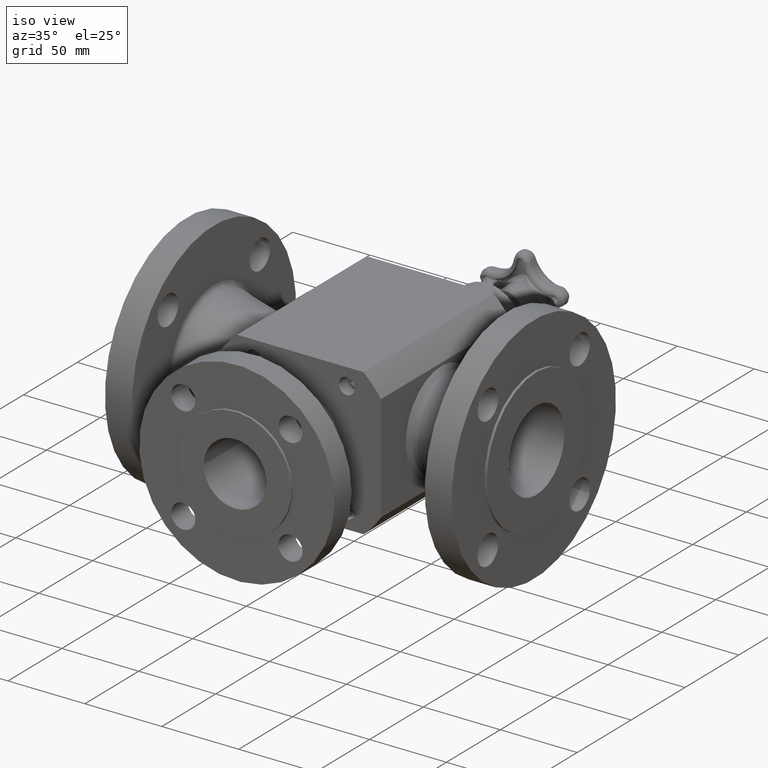
[diagram: clean part render]
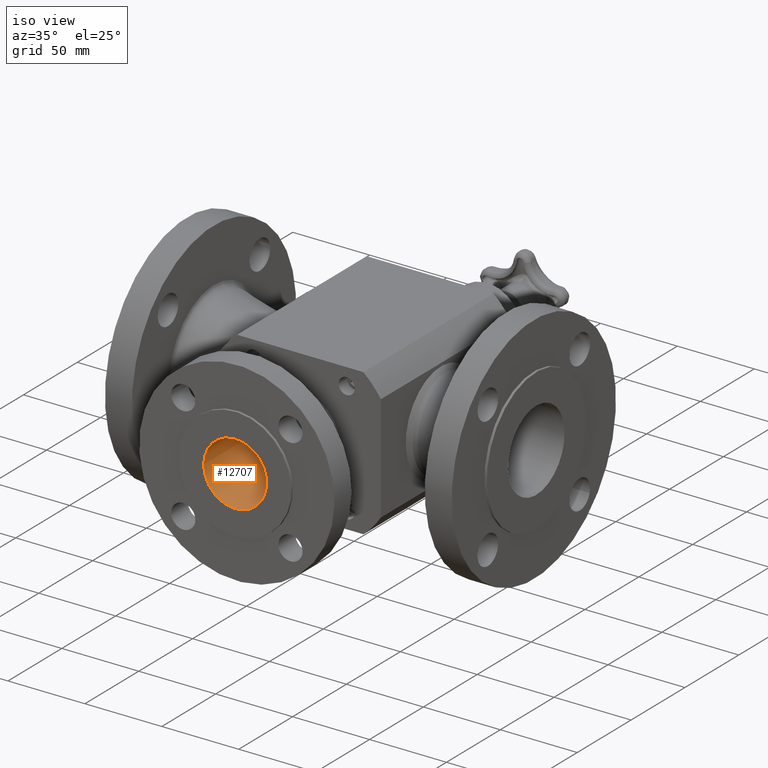
[diagram: same view with one face highlighted and labeled with its STEP entity id]
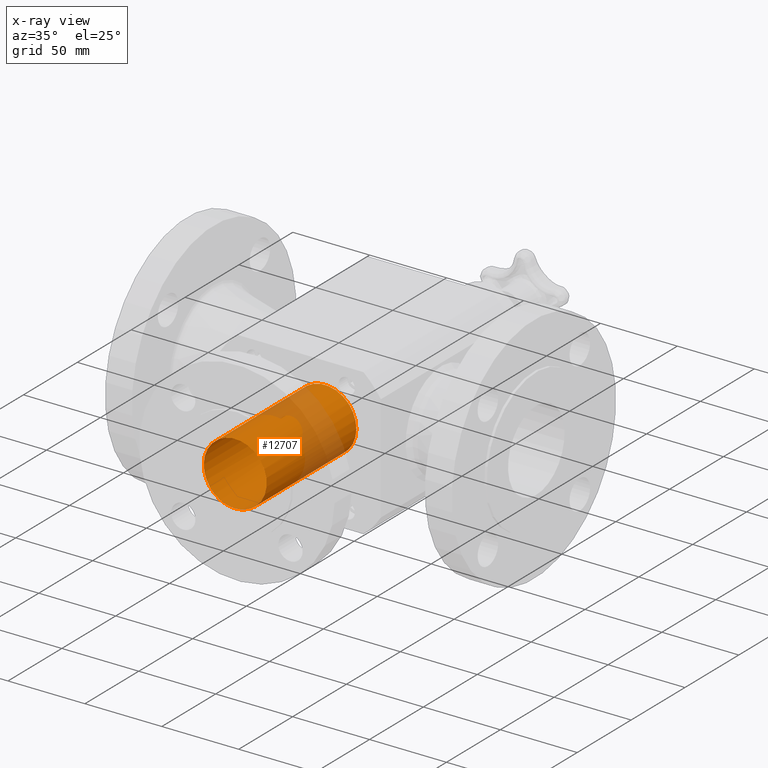
[diagram: x-ray of the same camera — body ghosted, the highlighted face saturated]
A machine part, iso view. The second image highlights one B-rep face of the part: STEP entity #12707.
The next image is the same camera in x-ray: the body ghosted, the highlighted face saturated — about 26% of this face is hidden behind the body in this view.
In plain terms, the highlighted cylindrical surface (bore or boss wall) has radius 20.447 mm, axis along (-0, 1, 0).
Its self-contained STEP definition (entity closure, byte-faithful):
#79=CARTESIAN_POINT('',(-0.805000000000000,0.900000000000000,1.933207E-016));
#80=VERTEX_POINT('',#79);
#81=CARTESIAN_POINT('',(-4.496403E-016,0.900000000000000,2.580696E-016));
#82=DIRECTION('',(0.0,1.0,0.0));
#83=DIRECTION('',(-1.0,0.0,0.0));
#84=AXIS2_PLACEMENT_3D('',#81,#82,#83);
#85=CIRCLE('',#84,0.805000000000000);
#86=EDGE_CURVE('',#80,#80,#85,.T.);
#11981=CARTESIAN_POINT('',(-0.226639322571029,-2.381500000010298,-0.772437452141199));
#11982=VERTEX_POINT('',#11981);
#11983=CARTESIAN_POINT('',(-3.344003E-016,-2.381500000010298,-1.015894E-015));
#11984=DIRECTION('',(2.534942E-016,-1.0,-2.534942E-016));
#11985=DIRECTION('',(-0.707106781186548,-3.584949E-016,0.707106781186547));
#11986=AXIS2_PLACEMENT_3D('',#11983,#11984,#11985);
#11987=CIRCLE('',#11986,0.805000000003000);
#11988=EDGE_CURVE('',#11982,#11982,#11987,.T.);
#12696=CARTESIAN_POINT('',(-2.248202E-016,0.450000000000000,1.290348E-016));
#12697=DIRECTION('',(-4.996004E-016,1.0,2.867440E-016));
#12698=DIRECTION('',(-1.0,0.0,0.0));
#12699=AXIS2_PLACEMENT_3D('',#12696,#12697,#12698);
#12700=CYLINDRICAL_SURFACE('',#12699,0.805000000000000);
#12701=ORIENTED_EDGE('',*,*,#11988,.T.);
#12702=EDGE_LOOP('',(#12701));
#12703=FACE_OUTER_BOUND('',#12702,.T.);
#12704=ORIENTED_EDGE('',*,*,#86,.T.);
#12705=EDGE_LOOP('',(#12704));
#12706=FACE_BOUND('',#12705,.T.);
#12707=ADVANCED_FACE('',(#12703,#12706),#12700,.F.);